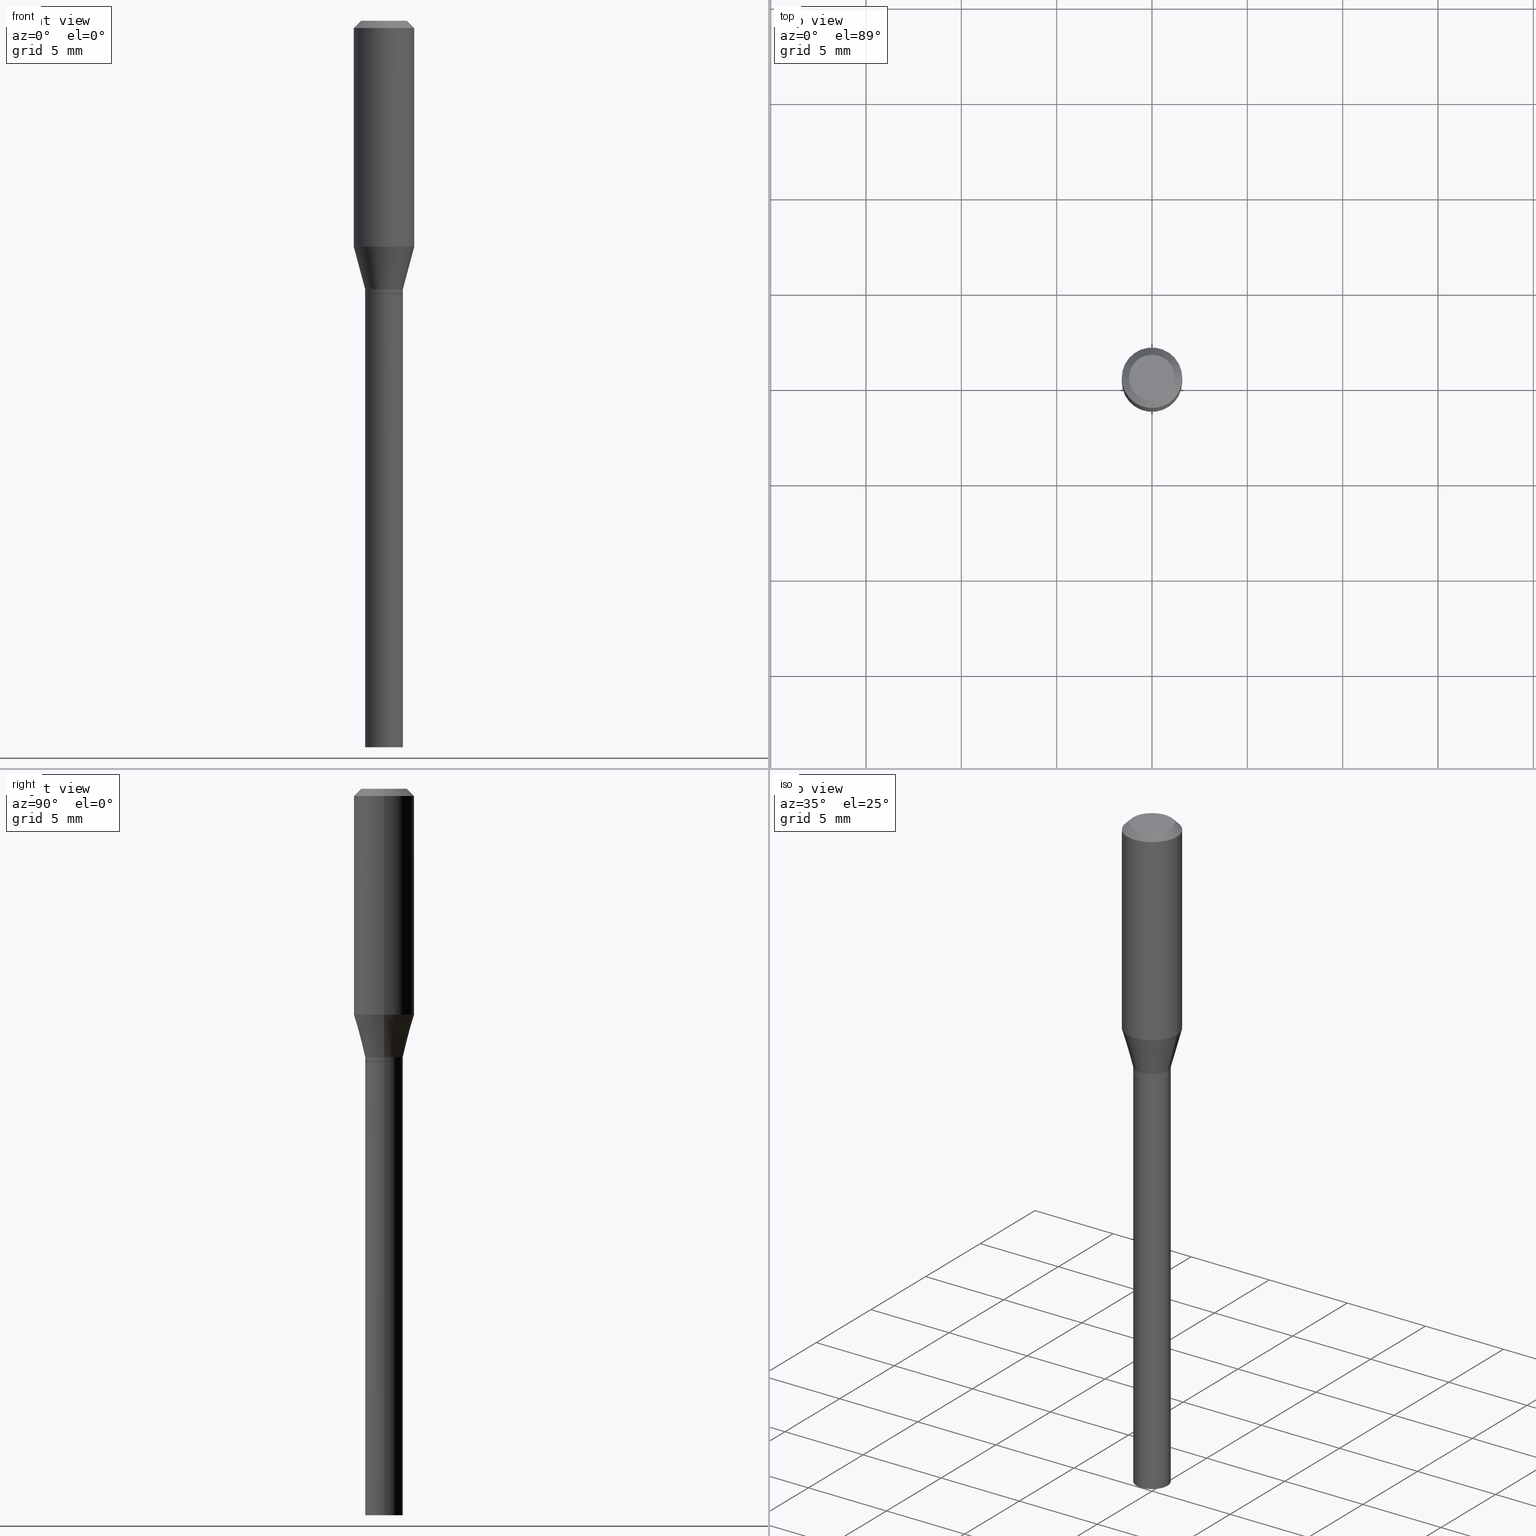
[diagram: canonical four-view strip — front | top / right | iso, engineering-drawing reading convention]
A machine part, canonical four-view strip (front | top / right | iso — engineering-drawing reading convention). The complete STEP part file that produces these views, byte-faithful:
ISO-10303-21;
HEADER;
FILE_DESCRIPTION (( 'STEP AP203' ),
    '1' );
FILE_NAME ('04255.STEP',
    '2024-03-14T17:32:29',
    ( '' ),
    ( '' ),
    'SwSTEP 2.0',
    'SolidWorks 2023',
    '' );
FILE_SCHEMA (( 'CONFIG_CONTROL_DESIGN' ));
ENDSEC;

DATA;
#1 = ORIENTED_EDGE ( 'NONE', *, *, #142, .T. ) ;
#2 = EDGE_CURVE ( 'NONE', #178, #13, #392, .T. ) ;
#3 = LINE ( 'NONE', #121, #437 ) ;
#4 = DIRECTION ( 'NONE',  ( 1.000000000000000000, -6.982962677686268288E-15, 0.000000000000000000 ) ) ;
#5 = EDGE_CURVE ( 'NONE', #143, #297, #371, .T. ) ;
#6 = ORIENTED_EDGE ( 'NONE', *, *, #462, .T. ) ;
#7 = FACE_OUTER_BOUND ( 'NONE', #243, .T. ) ;
#8 = CIRCLE ( 'NONE', #190, 0.03899999999999990974 ) ;
#9 = CLOSED_SHELL ( 'NONE', ( #228, #460, #357, #290, #238, #319, #234, #164, #186, #375, #93, #389 ) ) ;
#10 = ORIENTED_EDGE ( 'NONE', *, *, #30, .T. ) ;
#11 = APPROVAL_PERSON_ORGANIZATION ( #338, #229, #22 ) ;
#12 = DIRECTION ( 'NONE',  ( -2.438088387897960049E-29, 3.491481338843145188E-15, 1.000000000000000000 ) ) ;
#13 = VERTEX_POINT ( 'NONE', #56 ) ;
#14 = AXIS2_PLACEMENT_3D ( 'NONE', #94, #230, #119 ) ;
#15 = VECTOR ( 'NONE', #182, 39.37007874015748143 ) ;
#16 = DATE_AND_TIME ( #410, #450 ) ;
#17 = DIRECTION ( 'NONE',  ( -2.445468806185136877E-29, 3.491481338843145188E-15, 1.000000000000000000 ) ) ;
#18 = DIRECTION ( 'NONE',  ( 1.000000000000000000, -6.982962677686267499E-15, 4.852736867747366768E-29 ) ) ;
#19 = EDGE_CURVE ( 'NONE', #384, #394, #8, .T. ) ;
#20 = DIRECTION ( 'NONE',  ( 0.7071067811866621478, -2.468850131083457312E-15, 0.7071067811864328867 ) ) ;
#21 = DIRECTION ( 'NONE',  ( -2.445468806185136597E-29, 3.491481338843145583E-15, 1.000000000000000000 ) ) ;
#22 = APPROVAL_ROLE ( '' ) ;
#23 = CONICAL_SURFACE ( 'NONE', #435, 0.06250000000000000000, 0.7853981633974309595 ) ;
#24 = AXIS2_PLACEMENT_3D ( 'NONE', #108, #47, #187 ) ;
#25 = DIRECTION ( 'NONE',  ( -2.445468806185136597E-29, 3.491481338843145583E-15, 1.000000000000000000 ) ) ;
#26 = CARTESIAN_POINT ( 'NONE',  ( 0.000000000000000000, 0.000000000000000000, 0.000000000000000000 ) ) ;
#27 = CARTESIAN_POINT ( 'NONE',  ( -0.03899999999999990974, -1.657168994772664338E-15, -0.5540000000000000480 ) ) ;
#28 = EDGE_CURVE ( 'NONE', #13, #178, #449, .T. ) ;
#29 = DIRECTION ( 'NONE',  ( 1.000000000000000000, -6.982962677686265133E-15, 0.000000000000000000 ) ) ;
#30 = EDGE_CURVE ( 'NONE', #189, #13, #136, .T. ) ;
#31 = CYLINDRICAL_SURFACE ( 'NONE', #194, 0.03899999999999999994 ) ;
#32 = CALENDAR_DATE ( 2024, 14, 3 ) ;
#33 = DIRECTION ( 'NONE',  ( 1.000000000000000000, -6.982962677686267499E-15, 4.852736867747366768E-29 ) ) ;
#34 = ORIENTED_EDGE ( 'NONE', *, *, #260, .T. ) ;
#35 = CARTESIAN_POINT ( 'NONE',  ( 3.668203209277705088E-31, -5.237222008264718399E-17, -0.01499999999999999944 ) ) ;
#36 = AXIS2_PLACEMENT_3D ( 'NONE', #361, #334, #405 ) ;
#37 = APPROVAL_DATE_TIME ( #67, #282 ) ;
#38 = ORIENTED_EDGE ( 'NONE', *, *, #145, .F. ) ;
#39 = ORIENTED_EDGE ( 'NONE', *, *, #354, .T. ) ;
#40 = VECTOR ( 'NONE', #112, 39.37007874015748854 ) ;
#41 = ORIENTED_EDGE ( 'NONE', *, *, #255, .T. ) ;
#42 = EDGE_CURVE ( 'NONE', #213, #394, #446, .T. ) ;
#43 = CARTESIAN_POINT ( 'NONE',  ( 0.03899999999999990974, -2.206616206148866497E-15, -0.5540000000000000480 ) ) ;
#44 = EDGE_LOOP ( 'NONE', ( #154, #39, #183, #285 ) ) ;
#45 = LINE ( 'NONE', #43, #40 ) ;
#46 = ORIENTED_EDGE ( 'NONE', *, *, #151, .F. ) ;
#47 = DIRECTION ( 'NONE',  ( 2.445468806185136597E-29, -3.491481338843145583E-15, -1.000000000000000000 ) ) ;
#48 = CONICAL_SURFACE ( 'NONE', #215, 0.03849999999999999256, 0.7853981633976103716 ) ;
#49 = CC_DESIGN_APPROVAL ( #282, ( #465 ) ) ;
#50 = ORIENTED_EDGE ( 'NONE', *, *, #151, .T. ) ;
#51 = CC_DESIGN_PERSON_AND_ORGANIZATION_ASSIGNMENT ( #173, #198, ( #55 ) ) ;
#52 = CARTESIAN_POINT ( 'NONE',  ( 0.03849999999999999256, -2.238039538198455139E-15, -0.5639999999999999458 ) ) ;
#53 = VECTOR ( 'NONE', #382, 39.37007874015748143 ) ;
#54 = CC_DESIGN_PERSON_AND_ORGANIZATION_ASSIGNMENT ( #346, #236, ( #250 ) ) ;
#55 = PRODUCT ( '04255', '04255', '', ( #171 ) ) ;
#56 = CARTESIAN_POINT ( 'NONE',  ( 0.03899999999999999994, -2.241531019537298935E-15, -0.5640000000000000568 ) ) ;
#57 = CARTESIAN_POINT ( 'NONE',  ( -0.03849999999999999256, -1.692987294665784502E-15, -0.5639999999999999458 ) ) ;
#58 = DIRECTION ( 'NONE',  ( 1.000000000000000000, -6.982962677686266711E-15, 0.000000000000000000 ) ) ;
#59 = APPROVAL_DATE_TIME ( #444, #426 ) ;
#60 = APPROVAL_PERSON_ORGANIZATION ( #71, #282, #386 ) ;
#61 = CARTESIAN_POINT ( 'NONE',  ( 0.03849999999999999256, -2.238039538198455139E-15, -0.5639999999999999458 ) ) ;
#62 = PERSON_AND_ORGANIZATION_ROLE ( 'classification_officer' ) ;
#63 = DIRECTION ( 'NONE',  ( 1.000000000000000000, -6.982962677686266711E-15, 0.000000000000000000 ) ) ;
#64 = ORIENTED_EDGE ( 'NONE', *, *, #448, .T. ) ;
#65 = DIRECTION ( 'NONE',  ( 1.000000000000000000, -6.982962677686265922E-15, 4.876176775795935793E-29 ) ) ;
#66 = DIRECTION ( 'NONE',  ( -1.000000000000000000, 6.982962677686266711E-15, 0.000000000000000000 ) ) ;
#67 = DATE_AND_TIME ( #140, #383 ) ;
#68 = EDGE_CURVE ( 'NONE', #218, #189, #261, .T. ) ;
#69 = VECTOR ( 'NONE', #244, 39.37007874015748143 ) ;
#70 = AXIS2_PLACEMENT_3D ( 'NONE', #322, #464, #431 ) ;
#71 = PERSON_AND_ORGANIZATION ( #111, #211 ) ;
#72 = CC_DESIGN_DATE_AND_TIME_ASSIGNMENT ( #16, #161, ( #409 ) ) ;
#73 = ORIENTED_EDGE ( 'NONE', *, *, #74, .T. ) ;
#74 = EDGE_CURVE ( 'NONE', #466, #330, #245, .T. ) ;
#75 = ORIENTED_EDGE ( 'NONE', *, *, #212, .F. ) ;
#76 = CONICAL_SURFACE ( 'NONE', #24, 0.06250000000000000000, 0.7853981633974309595 ) ;
#77 = ORIENTED_EDGE ( 'NONE', *, *, #68, .F. ) ;
#78 = DIRECTION ( 'NONE',  ( 1.000000000000000000, -6.982962677686265922E-15, 4.876176775795935793E-29 ) ) ;
#79 = EDGE_LOOP ( 'NONE', ( #254, #401, #430, #274 ) ) ;
#80 = CARTESIAN_POINT ( 'NONE',  ( 0.03899999999999990974, -2.206616206148866497E-15, -0.5540000000000000480 ) ) ;
#81 = ORIENTED_EDGE ( 'NONE', *, *, #142, .F. ) ;
#82 = CARTESIAN_POINT ( 'NONE',  ( -0.03899999999999990974, -1.420573190755517475E-15, -0.5540000000000000480 ) ) ;
#83 = AXIS2_PLACEMENT_3D ( 'NONE', #149, #363, #4 ) ;
#84 = ORIENTED_EDGE ( 'NONE', *, *, #296, .F. ) ;
#85 = MANIFOLD_SOLID_BREP ( 'Body-Move/Copy2[1]', #209 ) ;
#86 = PERSON_AND_ORGANIZATION_ROLE ( 'creator' ) ;
#87 =( CONVERSION_BASED_UNIT ( 'INCH', #118 ) LENGTH_UNIT ( ) NAMED_UNIT ( #175 ) );
#88 = AXIS2_PLACEMENT_3D ( 'NONE', #184, #292, #78 ) ;
#89 = DIRECTION ( 'NONE',  ( 1.000000000000000000, -6.982962677686265133E-15, 0.000000000000000000 ) ) ;
#90 = DIRECTION ( 'NONE',  ( -2.445468806185136597E-29, 3.491481338843145583E-15, 1.000000000000000000 ) ) ;
#91 = DIRECTION ( 'NONE',  ( 1.000000000000000000, -6.982962677686270655E-15, 0.000000000000000000 ) ) ;
#92 = PERSON_AND_ORGANIZATION ( #111, #211 ) ;
#93 = ADVANCED_FACE ( 'NONE', ( #352 ), #48, .T. ) ;
#94 = CARTESIAN_POINT ( 'NONE',  ( 1.378021672285324658E-29, -1.967449734438113014E-15, -0.5635000000000001119 ) ) ;
#95 = COORDINATED_UNIVERSAL_TIME_OFFSET ( 5, 0, .BEHIND. ) ;
#96 = DIRECTION ( 'NONE',  ( -2.445468806185136597E-29, 3.491481338843145583E-15, 1.000000000000000000 ) ) ;
#97 = CC_DESIGN_APPROVAL ( #229, ( #409 ) ) ;
#98 = DIRECTION ( 'NONE',  ( 1.000000000000000000, -6.982962677686266711E-15, 0.000000000000000000 ) ) ;
#99 = CARTESIAN_POINT ( 'NONE',  ( -0.03899999999999999994, -3.326097074739686831E-15, -1.500000000000000222 ) ) ;
#100 = FACE_OUTER_BOUND ( 'NONE', #157, .T. ) ;
#101 = ADVANCED_FACE ( 'NONE', ( #200 ), #31, .T. ) ;
#102 = ORIENTED_EDGE ( 'NONE', *, *, #145, .T. ) ;
#103 = VECTOR ( 'NONE', #273, 39.37007874015748854 ) ;
#104 = EDGE_CURVE ( 'NONE', #297, #213, #210, .T. ) ;
#105 = EDGE_CURVE ( 'NONE', #189, #218, #407, .T. ) ;
#106 = ORIENTED_EDGE ( 'NONE', *, *, #135, .F. ) ;
#107 = ORIENTED_EDGE ( 'NONE', *, *, #68, .T. ) ;
#108 = CARTESIAN_POINT ( 'NONE',  ( 3.668203209277705088E-31, -5.237222008264718399E-17, -0.01499999999999999944 ) ) ;
#109 = AXIS2_PLACEMENT_3D ( 'NONE', #340, #127, #18 ) ;
#110 = EDGE_LOOP ( 'NONE', ( #294, #193, #368, #150 ) ) ;
#111 = PERSON ( 'UNSPECIFIED', 'UNSPECIFIED', 'UNSPECIFIED', ('UNSPECIFIED'), ('UNSPECIFIED'), ('UNSPECIFIED') ) ;
#112 = DIRECTION ( 'NONE',  ( 0.2588190451025211836, 1.565188264969622559E-15, 0.9659258262890679791 ) ) ;
#113 = EDGE_LOOP ( 'NONE', ( #46, #335 ) ) ;
#114 = PLANE ( 'NONE',  #345 ) ;
#115 = CARTESIAN_POINT ( 'NONE',  ( 1.379244406688417180E-29, -1.969195475107534123E-15, -0.5640000000000000568 ) ) ;
#116 = CIRCLE ( 'NONE', #370, 0.03900000000000005546 ) ;
#117 = DATE_AND_TIME ( #120, #191 ) ;
#118 = LENGTH_MEASURE_WITH_UNIT ( LENGTH_MEASURE( 0.02539999999999999897 ), #445 );
#119 = DIRECTION ( 'NONE',  ( 1.000000000000000000, -6.982962677686273810E-15, 0.000000000000000000 ) ) ;
#120 = CALENDAR_DATE ( 2024, 14, 3 ) ;
#121 = CARTESIAN_POINT ( 'NONE',  ( -0.03899999999999999994, 2.771116669464390721E-16, -1.918384685199413078E-30 ) ) ;
#122 = EDGE_CURVE ( 'NONE', #330, #328, #452, .T. ) ;
#123 = DIRECTION ( 'NONE',  ( 2.438088387897960049E-29, -3.491481338843145188E-15, -1.000000000000000000 ) ) ;
#124 = CARTESIAN_POINT ( 'NONE',  ( 1.379244406688416899E-29, -1.969195475107534123E-15, -0.5639999999999999458 ) ) ;
#125 = APPLICATION_PROTOCOL_DEFINITION ( 'international standard', 'config_control_design', 1994, #181 ) ;
#126 = FACE_OUTER_BOUND ( 'NONE', #246, .T. ) ;
#127 = DIRECTION ( 'NONE',  ( -2.445468806185136597E-29, 3.491481338843145583E-15, 1.000000000000000000 ) ) ;
#128 = PRODUCT_DEFINITION_SHAPE ( 'NONE', 'NONE',  #409 ) ;
#129 = DIRECTION ( 'NONE',  ( -2.445468806185136597E-29, 3.491481338843145583E-15, 1.000000000000000000 ) ) ;
#130 = PERSON_AND_ORGANIZATION_ROLE ( 'design_supplier' ) ;
#131 = DIRECTION ( 'NONE',  ( 1.000000000000000000, -6.982962677686266711E-15, 4.876176775795935793E-29 ) ) ;
#132 = CARTESIAN_POINT ( 'NONE',  ( 0.03899999999999997913, -2.723355444297642696E-16, 1.901708942560413880E-30 ) ) ;
#133 = AXIS2_PLACEMENT_3D ( 'NONE', #456, #129, #271 ) ;
#134 = VECTOR ( 'NONE', #289, 39.37007874015748143 ) ;
#135 = EDGE_CURVE ( 'NONE', #249, #213, #376, .T. ) ;
#136 = LINE ( 'NONE', #313, #358 ) ;
#137 = APPROVAL_STATUS ( 'not_yet_approved' ) ;
#138 = FACE_OUTER_BOUND ( 'NONE', #436, .T. ) ;
#139 = ORIENTED_EDGE ( 'NONE', *, *, #28, .T. ) ;
#140 = CALENDAR_DATE ( 2024, 14, 3 ) ;
#141 = ORIENTED_EDGE ( 'NONE', *, *, #42, .F. ) ;
#142 = EDGE_CURVE ( 'NONE', #355, #328, #202, .T. ) ;
#143 = VERTEX_POINT ( 'NONE', #61 ) ;
#144 = AXIS2_PLACEMENT_3D ( 'NONE', #377, #237, #347 ) ;
#145 = EDGE_CURVE ( 'NONE', #297, #384, #278, .T. ) ;
#146 = CARTESIAN_POINT ( 'NONE',  ( -0.06250000000000000000, 4.440892098500626162E-16, -3.074334431409316114E-30 ) ) ;
#147 = ORIENTED_EDGE ( 'NONE', *, *, #42, .T. ) ;
#148 = ORIENTED_EDGE ( 'NONE', *, *, #122, .F. ) ;
#149 = CARTESIAN_POINT ( 'NONE',  ( 1.354789718626565634E-29, -1.934280661719102868E-15, -0.5540000000000000480 ) ) ;
#150 = ORIENTED_EDGE ( 'NONE', *, *, #270, .F. ) ;
#151 = EDGE_CURVE ( 'NONE', #143, #249, #284, .T. ) ;
#152 = CYLINDRICAL_SURFACE ( 'NONE', #36, 0.03899999999999997913 ) ;
#153 = CIRCLE ( 'NONE', #109, 0.04749999999999999362 ) ;
#154 = ORIENTED_EDGE ( 'NONE', *, *, #255, .F. ) ;
#155 = EDGE_CURVE ( 'NONE', #330, #466, #223, .T. ) ;
#156 = DIRECTION ( 'NONE',  ( -2.445468806185136597E-29, 3.491481338843145583E-15, 1.000000000000000000 ) ) ;
#157 = EDGE_LOOP ( 'NONE', ( #64, #34 ) ) ;
#158 = PRODUCT_RELATED_PRODUCT_CATEGORY ( 'detail', '', ( #55 ) ) ;
#159 = CARTESIAN_POINT ( 'NONE',  ( 0.000000000000000000, 0.000000000000000000, 0.000000000000000000 ) ) ;
#160 = CONICAL_SURFACE ( 'NONE', #144, 0.03899999999999990974, 0.2617993877991499074 ) ;
#161 = DATE_TIME_ROLE ( 'creation_date' ) ;
#162 = DIRECTION ( 'NONE',  ( -2.445468806185136597E-29, 3.491481338843145583E-15, 1.000000000000000000 ) ) ;
#163 = CARTESIAN_POINT ( 'NONE',  ( 1.379244406688416899E-29, -1.969195475107534123E-15, -0.5639999999999999458 ) ) ;
#164 = ADVANCED_FACE ( 'NONE', ( #239 ), #23, .T. ) ;
#165 = DIRECTION ( 'NONE',  ( -1.000000000000000000, 6.982962677686265922E-15, -4.876176775795935793E-29 ) ) ;
#166 = DIRECTION ( 'NONE',  ( -2.445468806185136597E-29, 3.491481338843145583E-15, 1.000000000000000000 ) ) ;
#167 = DIRECTION ( 'NONE',  ( 1.000000000000000000, 0.000000000000000000, 0.000000000000000000 ) ) ;
#168 = AXIS2_PLACEMENT_3D ( 'NONE', #422, #204, #275 ) ;
#169 = CONICAL_SURFACE ( 'NONE', #337, 0.03899999999999990974, 0.2617993877991499074 ) ;
#170 = DIRECTION ( 'NONE',  ( 1.000000000000000000, -6.982962677686258033E-15, 0.000000000000000000 ) ) ;
#171 = MECHANICAL_CONTEXT ( 'NONE', #293, 'mechanical' ) ;
#172 = DIRECTION ( 'NONE',  ( 1.000000000000000000, -6.982962677686258033E-15, 0.000000000000000000 ) ) ;
#173 = PERSON_AND_ORGANIZATION ( #111, #211 ) ;
#174 = LINE ( 'NONE', #315, #134 ) ;
#175 = DIMENSIONAL_EXPONENTS ( 1.000000000000000000, 0.000000000000000000, 0.000000000000000000, 0.000000000000000000, 0.000000000000000000, 0.000000000000000000, 0.000000000000000000 ) ;
#176 = DIRECTION ( 'NONE',  ( -2.445468806185136877E-29, 3.491481338843145188E-15, 1.000000000000000000 ) ) ;
#177 = CC_DESIGN_SECURITY_CLASSIFICATION ( #465, ( #250 ) ) ;
#178 = VERTEX_POINT ( 'NONE', #423 ) ;
#179 = FACE_OUTER_BOUND ( 'NONE', #325, .T. ) ;
#180 = ORIENTED_EDGE ( 'NONE', *, *, #155, .T. ) ;
#181 = APPLICATION_CONTEXT ( 'configuration controlled 3d designs of mechanical parts and assemblies' ) ;
#182 = DIRECTION ( 'NONE',  ( -2.445468806185136877E-29, 3.491481338843145188E-15, 1.000000000000000000 ) ) ;
#183 = ORIENTED_EDGE ( 'NONE', *, *, #320, .T. ) ;
#184 = CARTESIAN_POINT ( 'NONE',  ( 1.379244406688417180E-29, -1.969195475107534123E-15, -0.5640000000000000568 ) ) ;
#185 = EDGE_LOOP ( 'NONE', ( #332, #147, #395, #38 ) ) ;
#186 = ADVANCED_FACE ( 'NONE', ( #100 ), #390, .F. ) ;
#187 = DIRECTION ( 'NONE',  ( -1.000000000000000000, 6.982962677686266711E-15, 0.000000000000000000 ) ) ;
#188 = ADVANCED_FACE ( 'NONE', ( #179 ), #226, .T. ) ;
#189 = VERTEX_POINT ( 'NONE', #207 ) ;
#190 = AXIS2_PLACEMENT_3D ( 'NONE', #416, #21, #413 ) ;
#191 = LOCAL_TIME ( 13, 32, 29.00000000000000000, #417 ) ;
#192 = FACE_OUTER_BOUND ( 'NONE', #388, .T. ) ;
#193 = ORIENTED_EDGE ( 'NONE', *, *, #301, .T. ) ;
#194 = AXIS2_PLACEMENT_3D ( 'NONE', #344, #25, #242 ) ;
#195 =( NAMED_UNIT ( * ) SI_UNIT ( $, .STERADIAN. ) SOLID_ANGLE_UNIT ( ) );
#196 = CARTESIAN_POINT ( 'NONE',  ( 3.316907271900976096E-16, 0.04749999999999999362, 9.606345999275830148E-17 ) ) ;
#197 = DIRECTION ( 'NONE',  ( -2.445468806185136597E-29, 3.491481338843145583E-15, 1.000000000000000000 ) ) ;
#198 = PERSON_AND_ORGANIZATION_ROLE ( 'design_owner' ) ;
#199 = DIRECTION ( 'NONE',  ( 1.000000000000000000, -6.982962677686265133E-15, 0.000000000000000000 ) ) ;
#200 = FACE_OUTER_BOUND ( 'NONE', #79, .T. ) ;
#201 = APPROVAL_STATUS ( 'not_yet_approved' ) ;
#202 = CIRCLE ( 'NONE', #133, 0.06250000000000000000 ) ;
#203 = AXIS2_PLACEMENT_3D ( 'NONE', #26, #267, #167 ) ;
#204 = DIRECTION ( 'NONE',  ( -2.445468806185136597E-29, 3.491481338843145583E-15, 1.000000000000000000 ) ) ;
#205 = CARTESIAN_POINT ( 'NONE',  ( -1.280979716297259255E-44, 1.828899540070384152E-30, 5.238176471756153958E-16 ) ) ;
#206 = CC_DESIGN_DATE_AND_TIME_ASSIGNMENT ( #443, #283, ( #465 ) ) ;
#207 = CARTESIAN_POINT ( 'NONE',  ( 0.03899999999999999994, -5.509557552694482989E-15, -1.500000000000000222 ) ) ;
#208 = CARTESIAN_POINT ( 'NONE',  ( 1.140314293550883428E-29, -1.628066596588433426E-15, -0.4662968060221312494 ) ) ;
#209 = CLOSED_SHELL ( 'NONE', ( #101, #433, #188, #447 ) ) ;
#210 = CIRCLE ( 'NONE', #14, 0.03900000000000005546 ) ;
#211 = ORGANIZATION ( 'UNSPECIFIED', 'UNSPECIFIED', '' ) ;
#212 = EDGE_CURVE ( 'NONE', #218, #178, #3, .T. ) ;
#213 = VERTEX_POINT ( 'NONE', #264 ) ;
#214 = ORIENTED_EDGE ( 'NONE', *, *, #296, .T. ) ;
#215 = AXIS2_PLACEMENT_3D ( 'NONE', #124, #266, #89 ) ;
#216 = AXIS2_PLACEMENT_3D ( 'NONE', #303, #339, #231 ) ;
#217 = DIRECTION ( 'NONE',  ( 1.000000000000000000, -6.982962677686268288E-15, 0.000000000000000000 ) ) ;
#218 = VERTEX_POINT ( 'NONE', #99 ) ;
#219 = CARTESIAN_POINT ( 'NONE',  ( 0.04749999999999999362, -4.035134999187569255E-16, 5.238176471756179596E-16 ) ) ;
#220 = ORIENTED_EDGE ( 'NONE', *, *, #301, .F. ) ;
#221 = PLANE ( 'NONE',  #88 ) ;
#222 = ORIENTED_EDGE ( 'NONE', *, *, #448, .F. ) ;
#223 = CIRCLE ( 'NONE', #397, 0.06250000000000000000 ) ;
#224 = DIRECTION ( 'NONE',  ( 1.000000000000000000, -6.982962677686270655E-15, 0.000000000000000000 ) ) ;
#225 = CC_DESIGN_PERSON_AND_ORGANIZATION_ASSIGNMENT ( #92, #86, ( #409 ) ) ;
#226 = CYLINDRICAL_SURFACE ( 'NONE', #277, 0.03899999999999999994 ) ;
#227 = AXIS2_PLACEMENT_3D ( 'NONE', #205, #350, #33 ) ;
#228 = ADVANCED_FACE ( 'NONE', ( #381 ), #414, .T. ) ;
#229 = APPROVAL ( #201, 'UNSPECIFIED' ) ;
#230 = DIRECTION ( 'NONE',  ( -2.445468806185136597E-29, 3.491481338843145583E-15, 1.000000000000000000 ) ) ;
#231 = DIRECTION ( 'NONE',  ( 1.000000000000000000, -6.982962677686266711E-15, 4.876176775795935793E-29 ) ) ;
#232 = DIRECTION ( 'NONE',  ( -1.000000000000000000, 6.982962677686265922E-15, -4.876176775795935793E-29 ) ) ;
#233 = CARTESIAN_POINT ( 'NONE',  ( -0.03899999999999997913, 2.771116669464389242E-16, -1.918384685199412027E-30 ) ) ;
#234 = ADVANCED_FACE ( 'NONE', ( #387 ), #268, .T. ) ;
#235 = CARTESIAN_POINT ( 'NONE',  ( 3.668203209277704895E-29, -5.237222008264718177E-15, -1.500000000000000222 ) ) ;
#236 = PERSON_AND_ORGANIZATION_ROLE ( 'creator' ) ;
#237 = DIRECTION ( 'NONE',  ( -2.445468806185136597E-29, 3.491481338843145583E-15, 1.000000000000000000 ) ) ;
#238 = ADVANCED_FACE ( 'NONE', ( #126 ), #160, .T. ) ;
#239 = FACE_OUTER_BOUND ( 'NONE', #291, .T. ) ;
#240 = CARTESIAN_POINT ( 'NONE',  ( 0.000000000000000000, 0.000000000000000000, 0.000000000000000000 ) ) ;
#241 = EDGE_LOOP ( 'NONE', ( #84, #73, #406, #81 ) ) ;
#242 = DIRECTION ( 'NONE',  ( 1.000000000000000000, -6.982962677686265922E-15, 4.876176775795935793E-29 ) ) ;
#243 = EDGE_LOOP ( 'NONE', ( #141, #252, #102, #439 ) ) ;
#244 = DIRECTION ( 'NONE',  ( 0.7071067811865352493, -7.319954787623213447E-15, -0.7071067811865597852 ) ) ;
#245 = CIRCLE ( 'NONE', #324, 0.06250000000000000000 ) ;
#246 = EDGE_LOOP ( 'NONE', ( #441, #41, #359, #391 ) ) ;
#247 = CIRCLE ( 'NONE', #265, 0.06250000000000000000 ) ;
#248 = ORIENTED_EDGE ( 'NONE', *, *, #400, .F. ) ;
#249 = VERTEX_POINT ( 'NONE', #57 ) ;
#250 = PRODUCT_DEFINITION_FORMATION_WITH_SPECIFIED_SOURCE ( 'ANY', '', #55, .NOT_KNOWN. ) ;
#251 = CARTESIAN_POINT ( 'NONE',  ( 0.06250000000000000000, -4.888073874380388472E-16, -0.01499999999999999944 ) ) ;
#252 = ORIENTED_EDGE ( 'NONE', *, *, #400, .T. ) ;
#253 = CARTESIAN_POINT ( 'NONE',  ( -0.06250000000000000000, -3.961301984854776856E-16, -0.01499999999999999944 ) ) ;
#254 = ORIENTED_EDGE ( 'NONE', *, *, #105, .T. ) ;
#255 = EDGE_CURVE ( 'NONE', #394, #466, #418, .T. ) ;
#256 = CARTESIAN_POINT ( 'NONE',  ( 2.723355444297781239E-16, 0.03899999999999802236, -0.5640000000000001679 ) ) ;
#257 = DIRECTION ( 'NONE',  ( -2.445468806185136597E-29, 3.491481338843145583E-15, 1.000000000000000000 ) ) ;
#258 = APPROVAL_PERSON_ORGANIZATION ( #374, #426, #302 ) ;
#259 = EDGE_CURVE ( 'NONE', #328, #355, #247, .T. ) ;
#260 = EDGE_CURVE ( 'NONE', #425, #403, #263, .T. ) ;
#261 = CIRCLE ( 'NONE', #455, 0.03899999999999999994 ) ;
#262 = DIRECTION ( 'NONE',  ( -2.445468806185136597E-29, 3.491481338843145583E-15, 1.000000000000000000 ) ) ;
#263 = CIRCLE ( 'NONE', #227, 0.04749999999999999362 ) ;
#264 = CARTESIAN_POINT ( 'NONE',  ( -0.03900000000000005546, -1.690338067491673498E-15, -0.5635000000000001119 ) ) ;
#265 = AXIS2_PLACEMENT_3D ( 'NONE', #421, #96, #63 ) ;
#266 = DIRECTION ( 'NONE',  ( -2.445468806185136597E-29, 3.491481338843145583E-15, 1.000000000000000000 ) ) ;
#267 = DIRECTION ( 'NONE',  ( 0.000000000000000000, 0.000000000000000000, 1.000000000000000000 ) ) ;
#268 = CYLINDRICAL_SURFACE ( 'NONE', #216, 0.06250000000000000000 ) ;
#269 = DIRECTION ( 'NONE',  ( -2.445468806185136597E-29, 3.491481338843145583E-15, 1.000000000000000000 ) ) ;
#270 = EDGE_CURVE ( 'NONE', #403, #355, #174, .T. ) ;
#271 = DIRECTION ( 'NONE',  ( 1.000000000000000000, -6.982962677686266711E-15, 0.000000000000000000 ) ) ;
#272 = SECURITY_CLASSIFICATION_LEVEL ( 'unclassified' ) ;
#273 = DIRECTION ( 'NONE',  ( -0.2588190451025211836, 5.211531920934547886E-15, 0.9659258262890679791 ) ) ;
#274 = ORIENTED_EDGE ( 'NONE', *, *, #30, .F. ) ;
#275 = DIRECTION ( 'NONE',  ( 1.000000000000000000, -6.982962677686265133E-15, 0.000000000000000000 ) ) ;
#276 = AXIS2_PLACEMENT_3D ( 'NONE', #235, #262, #170 ) ;
#277 = AXIS2_PLACEMENT_3D ( 'NONE', #159, #366, #65 ) ;
#278 = LINE ( 'NONE', #132, #308 ) ;
#279 = CYLINDRICAL_SURFACE ( 'NONE', #70, 0.06250000000000000000 ) ;
#280 = LINE ( 'NONE', #458, #69 ) ;
#281 = EDGE_LOOP ( 'NONE', ( #139, #288 ) ) ;
#282 = APPROVAL ( #137, 'UNSPECIFIED' ) ;
#283 = DATE_TIME_ROLE ( 'classification_date' ) ;
#284 = CIRCLE ( 'NONE', #168, 0.03849999999999999256 ) ;
#285 = ORIENTED_EDGE ( 'NONE', *, *, #74, .F. ) ;
#286 = AXIS2_PLACEMENT_3D ( 'NONE', #163, #90, #199 ) ;
#287 = COORDINATED_UNIVERSAL_TIME_OFFSET ( 5, 0, .BEHIND. ) ;
#288 = ORIENTED_EDGE ( 'NONE', *, *, #2, .T. ) ;
#289 = DIRECTION ( 'NONE',  ( -0.7071067811865352493, 2.468850131082128476E-15, -0.7071067811865597852 ) ) ;
#290 = ADVANCED_FACE ( 'NONE', ( #138 ), #279, .T. ) ;
#291 = EDGE_LOOP ( 'NONE', ( #220, #222, #356, #1 ) ) ;
#292 = DIRECTION ( 'NONE',  ( -2.438088387897960049E-29, 3.491481338843145188E-15, 1.000000000000000000 ) ) ;
#293 = APPLICATION_CONTEXT ( 'configuration controlled 3d designs of mechanical parts and assemblies' ) ;
#294 = ORIENTED_EDGE ( 'NONE', *, *, #260, .F. ) ;
#295 = PLANE ( 'NONE',  #333 ) ;
#296 = EDGE_CURVE ( 'NONE', #466, #355, #353, .T. ) ;
#297 = VERTEX_POINT ( 'NONE', #429 ) ;
#298 = DIRECTION ( 'NONE',  ( 1.000000000000000000, -6.982962677686265922E-15, 4.876176775795935793E-29 ) ) ;
#299 = ORIENTED_EDGE ( 'NONE', *, *, #104, .F. ) ;
#300 = DESIGN_CONTEXT ( 'detailed design', #181, 'design' ) ;
#301 = EDGE_CURVE ( 'NONE', #425, #328, #280, .T. ) ;
#302 = APPROVAL_ROLE ( '' ) ;
#303 = CARTESIAN_POINT ( 'NONE',  ( 0.000000000000000000, 0.000000000000000000, 0.000000000000000000 ) ) ;
#304 = CC_DESIGN_PERSON_AND_ORGANIZATION_ASSIGNMENT ( #453, #130, ( #250 ) ) ;
#305 = CARTESIAN_POINT ( 'NONE',  ( -0.06250000000000000000, -1.183977386738370809E-15, -0.4662968060221312494 ) ) ;
#306 = CARTESIAN_POINT ( 'NONE',  ( 1.140314293550883428E-29, -1.628066596588433426E-15, -0.4662968060221312494 ) ) ;
#307 = APPLICATION_PROTOCOL_DEFINITION ( 'international standard', 'config_control_design', 1994, #293 ) ;
#308 = VECTOR ( 'NONE', #176, 39.37007874015748143 ) ;
#309 = CARTESIAN_POINT ( 'NONE',  ( 1.379244406688417180E-29, -1.969195475107534123E-15, -0.5640000000000000568 ) ) ;
#310 = CARTESIAN_POINT ( 'NONE',  ( 1.379244406688416899E-29, -1.969195475107534123E-15, -0.5639999999999999458 ) ) ;
#311 = CARTESIAN_POINT ( 'NONE',  ( 3.668203209277704895E-29, -5.237222008264718177E-15, -1.500000000000000222 ) ) ;
#312 = APPROVAL_STATUS ( 'not_yet_approved' ) ;
#313 = CARTESIAN_POINT ( 'NONE',  ( 0.03899999999999999994, -2.723355444297643682E-16, 1.901708942560414931E-30 ) ) ;
#314 = SHAPE_DEFINITION_REPRESENTATION ( #128, #323 ) ;
#315 = CARTESIAN_POINT ( 'NONE',  ( -0.06250000000000000000, 3.840629472727444916E-16, -0.01499999999999999944 ) ) ;
#316 = DIRECTION ( 'NONE',  ( -2.445468806185136877E-29, 3.491481338843145188E-15, 1.000000000000000000 ) ) ;
#317 = VECTOR ( 'NONE', #419, 39.37007874015748143 ) ;
#318 = CC_DESIGN_APPROVAL ( #426, ( #250 ) ) ;
#319 = ADVANCED_FACE ( 'NONE', ( #463 ), #169, .T. ) ;
#320 = EDGE_CURVE ( 'NONE', #384, #330, #45, .T. ) ;
#321 = EDGE_LOOP ( 'NONE', ( #50, #362, #299, #432 ) ) ;
#322 = CARTESIAN_POINT ( 'NONE',  ( 0.000000000000000000, 0.000000000000000000, 0.000000000000000000 ) ) ;
#323 = ADVANCED_BREP_SHAPE_REPRESENTATION ( '04255', ( #85, #404, #203 ), #393 ) ;
#324 = AXIS2_PLACEMENT_3D ( 'NONE', #208, #379, #58 ) ;
#325 = EDGE_LOOP ( 'NONE', ( #75, #107, #10, #461 ) ) ;
#326 = LOCAL_TIME ( 13, 32, 29.00000000000000000, #95 ) ;
#327 = CARTESIAN_POINT ( 'NONE',  ( 1.354789718626565634E-29, -1.934280661719102868E-15, -0.5540000000000000480 ) ) ;
#328 = VERTEX_POINT ( 'NONE', #251 ) ;
#329 = DIRECTION ( 'NONE',  ( -2.445468806185136597E-29, 3.491481338843145583E-15, 1.000000000000000000 ) ) ;
#330 = VERTEX_POINT ( 'NONE', #399 ) ;
#331 = FACE_OUTER_BOUND ( 'NONE', #113, .T. ) ;
#332 = ORIENTED_EDGE ( 'NONE', *, *, #104, .T. ) ;
#333 = AXIS2_PLACEMENT_3D ( 'NONE', #438, #12, #298 ) ;
#334 = DIRECTION ( 'NONE',  ( -2.445468806185136597E-29, 3.491481338843145583E-15, 1.000000000000000000 ) ) ;
#335 = ORIENTED_EDGE ( 'NONE', *, *, #462, .F. ) ;
#336 = AXIS2_PLACEMENT_3D ( 'NONE', #309, #348, #91 ) ;
#337 = AXIS2_PLACEMENT_3D ( 'NONE', #327, #329, #217 ) ;
#338 = PERSON_AND_ORGANIZATION ( #111, #211 ) ;
#339 = DIRECTION ( 'NONE',  ( -2.445468806185136597E-29, 3.491481338843145583E-15, 1.000000000000000000 ) ) ;
#340 = CARTESIAN_POINT ( 'NONE',  ( -1.280979716297259255E-44, 1.828899540070384152E-30, 5.238176471756153958E-16 ) ) ;
#341 = DIRECTION ( 'NONE',  ( 2.438088387897960049E-29, -3.491481338843145188E-15, -1.000000000000000000 ) ) ;
#342 = CALENDAR_DATE ( 2024, 14, 3 ) ;
#343 = CARTESIAN_POINT ( 'NONE',  ( 0.06250000000000000000, -4.364351673553916694E-16, 3.047610484872459871E-30 ) ) ;
#344 = CARTESIAN_POINT ( 'NONE',  ( 0.000000000000000000, 0.000000000000000000, 0.000000000000000000 ) ) ;
#345 = AXIS2_PLACEMENT_3D ( 'NONE', #256, #123, #232 ) ;
#346 = PERSON_AND_ORGANIZATION ( #111, #211 ) ;
#347 = DIRECTION ( 'NONE',  ( 1.000000000000000000, -6.982962677686268288E-15, 0.000000000000000000 ) ) ;
#348 = DIRECTION ( 'NONE',  ( -2.445468806185136597E-29, 3.491481338843145583E-15, 1.000000000000000000 ) ) ;
#349 = COORDINATED_UNIVERSAL_TIME_OFFSET ( 5, 0, .BEHIND. ) ;
#350 = DIRECTION ( 'NONE',  ( -2.445468806185136597E-29, 3.491481338843145583E-15, 1.000000000000000000 ) ) ;
#351 = EDGE_LOOP ( 'NONE', ( #106, #6, #398, #248 ) ) ;
#352 = FACE_OUTER_BOUND ( 'NONE', #351, .T. ) ;
#353 = LINE ( 'NONE', #146, #15 ) ;
#354 = EDGE_CURVE ( 'NONE', #394, #384, #428, .T. ) ;
#355 = VERTEX_POINT ( 'NONE', #253 ) ;
#356 = ORIENTED_EDGE ( 'NONE', *, *, #270, .T. ) ;
#357 = ADVANCED_FACE ( 'NONE', ( #402 ), #76, .T. ) ;
#358 = VECTOR ( 'NONE', #316, 39.37007874015748143 ) ;
#359 = ORIENTED_EDGE ( 'NONE', *, *, #155, .F. ) ;
#360 = CONICAL_SURFACE ( 'NONE', #286, 0.03849999999999999256, 0.7853981633976103716 ) ;
#361 = CARTESIAN_POINT ( 'NONE',  ( 0.000000000000000000, 0.000000000000000000, 0.000000000000000000 ) ) ;
#362 = ORIENTED_EDGE ( 'NONE', *, *, #135, .T. ) ;
#363 = DIRECTION ( 'NONE',  ( -2.445468806185136597E-29, 3.491481338843145583E-15, 1.000000000000000000 ) ) ;
#364 = ORIENTED_EDGE ( 'NONE', *, *, #259, .F. ) ;
#365 = CARTESIAN_POINT ( 'NONE',  ( 1.378021672285324658E-29, -1.967449734438113014E-15, -0.5635000000000001119 ) ) ;
#366 = DIRECTION ( 'NONE',  ( -2.445468806185136597E-29, 3.491481338843145583E-15, 1.000000000000000000 ) ) ;
#367 = CC_DESIGN_PERSON_AND_ORGANIZATION_ASSIGNMENT ( #420, #62, ( #465 ) ) ;
#368 = ORIENTED_EDGE ( 'NONE', *, *, #259, .T. ) ;
#369 = VECTOR ( 'NONE', #20, 39.37007874015748143 ) ;
#370 = AXIS2_PLACEMENT_3D ( 'NONE', #365, #156, #434 ) ;
#371 = LINE ( 'NONE', #52, #369 ) ;
#372 = AXIS2_PLACEMENT_3D ( 'NONE', #196, #341, #165 ) ;
#373 = LOCAL_TIME ( 13, 32, 29.00000000000000000, #349 ) ;
#374 = PERSON_AND_ORGANIZATION ( #111, #211 ) ;
#375 = ADVANCED_FACE ( 'NONE', ( #331 ), #221, .F. ) ;
#376 = LINE ( 'NONE', #454, #317 ) ;
#377 = CARTESIAN_POINT ( 'NONE',  ( 1.354789718626565634E-29, -1.934280661719102868E-15, -0.5540000000000000480 ) ) ;
#378 = FACE_OUTER_BOUND ( 'NONE', #321, .T. ) ;
#379 = DIRECTION ( 'NONE',  ( -2.445468806185136597E-29, 3.491481338843145583E-15, 1.000000000000000000 ) ) ;
#380 = COORDINATED_UNIVERSAL_TIME_OFFSET ( 5, 0, .BEHIND. ) ;
#381 = FACE_OUTER_BOUND ( 'NONE', #185, .T. ) ;
#382 = DIRECTION ( 'NONE',  ( -2.445468806185136877E-29, 3.491481338843145188E-15, 1.000000000000000000 ) ) ;
#383 = LOCAL_TIME ( 13, 32, 29.00000000000000000, #287 ) ;
#384 = VERTEX_POINT ( 'NONE', #80 ) ;
#385 = DIRECTION ( 'NONE',  ( 2.445468806185136597E-29, -3.491481338843145583E-15, -1.000000000000000000 ) ) ;
#386 = APPROVAL_ROLE ( '' ) ;
#387 = FACE_OUTER_BOUND ( 'NONE', #241, .T. ) ;
#388 = EDGE_LOOP ( 'NONE', ( #459, #77 ) ) ;
#389 = ADVANCED_FACE ( 'NONE', ( #7 ), #152, .T. ) ;
#390 = PLANE ( 'NONE',  #372 ) ;
#391 = ORIENTED_EDGE ( 'NONE', *, *, #320, .F. ) ;
#392 = CIRCLE ( 'NONE', #412, 0.03899999999999999994 ) ;
#393 =( GEOMETRIC_REPRESENTATION_CONTEXT ( 3 ) GLOBAL_UNCERTAINTY_ASSIGNED_CONTEXT ( ( #415 ) ) GLOBAL_UNIT_ASSIGNED_CONTEXT ( ( #87, #424, #195 ) ) REPRESENTATION_CONTEXT ( 'NONE', 'WORKASPACE' ) );
#394 = VERTEX_POINT ( 'NONE', #82 ) ;
#395 = ORIENTED_EDGE ( 'NONE', *, *, #19, .F. ) ;
#396 = CARTESIAN_POINT ( 'NONE',  ( -0.04749999999999999362, 3.578768372314219874E-16, 5.238176471756130292E-16 ) ) ;
#397 = AXIS2_PLACEMENT_3D ( 'NONE', #306, #166, #98 ) ;
#398 = ORIENTED_EDGE ( 'NONE', *, *, #5, .T. ) ;
#399 = CARTESIAN_POINT ( 'NONE',  ( 0.06250000000000000000, -2.064501763943824898E-15, -0.4662968060221312494 ) ) ;
#400 = EDGE_CURVE ( 'NONE', #213, #297, #116, .T. ) ;
#401 = ORIENTED_EDGE ( 'NONE', *, *, #212, .T. ) ;
#402 = FACE_OUTER_BOUND ( 'NONE', #110, .T. ) ;
#403 = VERTEX_POINT ( 'NONE', #396 ) ;
#404 = MANIFOLD_SOLID_BREP ( 'Body-Move/Copy2[2]', #9 ) ;
#405 = DIRECTION ( 'NONE',  ( 1.000000000000000000, -6.982962677686266711E-15, 4.876176775795935793E-29 ) ) ;
#406 = ORIENTED_EDGE ( 'NONE', *, *, #122, .T. ) ;
#407 = CIRCLE ( 'NONE', #276, 0.03899999999999999994 ) ;
#408 = AXIS2_PLACEMENT_3D ( 'NONE', #310, #269, #29 ) ;
#409 = PRODUCT_DEFINITION ( 'UNKNOWN', '', #250, #300 ) ;
#410 = CALENDAR_DATE ( 2024, 14, 3 ) ;
#411 = APPROVAL_DATE_TIME ( #117, #229 ) ;
#412 = AXIS2_PLACEMENT_3D ( 'NONE', #115, #257, #224 ) ;
#413 = DIRECTION ( 'NONE',  ( 1.000000000000000000, -6.982962677686268288E-15, 0.000000000000000000 ) ) ;
#414 = CYLINDRICAL_SURFACE ( 'NONE', #442, 0.03899999999999997913 ) ;
#415 = UNCERTAINTY_MEASURE_WITH_UNIT (LENGTH_MEASURE( 1.000000000000000082E-05 ), #87, 'distance_accuracy_value', 'NONE');
#416 = CARTESIAN_POINT ( 'NONE',  ( 1.354789718626565634E-29, -1.934280661719102868E-15, -0.5540000000000000480 ) ) ;
#417 = COORDINATED_UNIVERSAL_TIME_OFFSET ( 5, 0, .BEHIND. ) ;
#418 = LINE ( 'NONE', #27, #103 ) ;
#419 = DIRECTION ( 'NONE',  ( -0.7071067811866621478, 7.493145998870769101E-15, 0.7071067811864328867 ) ) ;
#420 = PERSON_AND_ORGANIZATION ( #111, #211 ) ;
#421 = CARTESIAN_POINT ( 'NONE',  ( 3.668203209277705088E-31, -5.237222008264718399E-17, -0.01499999999999999944 ) ) ;
#422 = CARTESIAN_POINT ( 'NONE',  ( 1.379244406688416899E-29, -1.969195475107534123E-15, -0.5639999999999999458 ) ) ;
#423 = CARTESIAN_POINT ( 'NONE',  ( -0.03899999999999999994, -3.326097074739686831E-15, -0.5640000000000000568 ) ) ;
#424 =( NAMED_UNIT ( * ) PLANE_ANGLE_UNIT ( ) SI_UNIT ( $, .RADIAN. ) );
#425 = VERTEX_POINT ( 'NONE', #219 ) ;
#426 = APPROVAL ( #312, 'UNSPECIFIED' ) ;
#427 = VECTOR ( 'NONE', #451, 39.37007874015748143 ) ;
#428 = CIRCLE ( 'NONE', #83, 0.03899999999999990974 ) ;
#429 = CARTESIAN_POINT ( 'NONE',  ( 0.03900000000000005546, -2.239785278867877431E-15, -0.5635000000000001119 ) ) ;
#430 = ORIENTED_EDGE ( 'NONE', *, *, #28, .F. ) ;
#431 = DIRECTION ( 'NONE',  ( 1.000000000000000000, -6.982962677686266711E-15, 4.876176775795935793E-29 ) ) ;
#432 = ORIENTED_EDGE ( 'NONE', *, *, #5, .F. ) ;
#433 = ADVANCED_FACE ( 'NONE', ( #192 ), #295, .F. ) ;
#434 = DIRECTION ( 'NONE',  ( 1.000000000000000000, -6.982962677686273810E-15, 0.000000000000000000 ) ) ;
#435 = AXIS2_PLACEMENT_3D ( 'NONE', #35, #385, #66 ) ;
#436 = EDGE_LOOP ( 'NONE', ( #180, #214, #364, #148 ) ) ;
#437 = VECTOR ( 'NONE', #17, 39.37007874015748143 ) ;
#438 = CARTESIAN_POINT ( 'NONE',  ( 3.576687321579069994E-29, -5.368277968210015545E-15, -1.500000000000000222 ) ) ;
#439 = ORIENTED_EDGE ( 'NONE', *, *, #354, .F. ) ;
#440 = FACE_OUTER_BOUND ( 'NONE', #281, .T. ) ;
#441 = ORIENTED_EDGE ( 'NONE', *, *, #19, .T. ) ;
#442 = AXIS2_PLACEMENT_3D ( 'NONE', #240, #162, #131 ) ;
#443 = DATE_AND_TIME ( #32, #373 ) ;
#444 = DATE_AND_TIME ( #342, #326 ) ;
#445 =( LENGTH_UNIT ( ) NAMED_UNIT ( * ) SI_UNIT ( $, .METRE. ) );
#446 = LINE ( 'NONE', #233, #427 ) ;
#447 = ADVANCED_FACE ( 'NONE', ( #440 ), #114, .F. ) ;
#448 = EDGE_CURVE ( 'NONE', #403, #425, #153, .T. ) ;
#449 = CIRCLE ( 'NONE', #336, 0.03899999999999999994 ) ;
#450 = LOCAL_TIME ( 13, 32, 29.00000000000000000, #380 ) ;
#451 = DIRECTION ( 'NONE',  ( -2.445468806185136877E-29, 3.491481338843145188E-15, 1.000000000000000000 ) ) ;
#452 = LINE ( 'NONE', #343, #53 ) ;
#453 = PERSON_AND_ORGANIZATION ( #111, #211 ) ;
#454 = CARTESIAN_POINT ( 'NONE',  ( -0.03849999999999999256, -1.695636521839895505E-15, -0.5639999999999999458 ) ) ;
#455 = AXIS2_PLACEMENT_3D ( 'NONE', #311, #197, #172 ) ;
#456 = CARTESIAN_POINT ( 'NONE',  ( 3.668203209277705088E-31, -5.237222008264718399E-17, -0.01499999999999999944 ) ) ;
#457 = CIRCLE ( 'NONE', #408, 0.03849999999999999256 ) ;
#458 = CARTESIAN_POINT ( 'NONE',  ( 0.06250000000000000000, -4.811533449433679005E-16, -0.01499999999999999944 ) ) ;
#459 = ORIENTED_EDGE ( 'NONE', *, *, #105, .F. ) ;
#460 = ADVANCED_FACE ( 'NONE', ( #378 ), #360, .T. ) ;
#461 = ORIENTED_EDGE ( 'NONE', *, *, #2, .F. ) ;
#462 = EDGE_CURVE ( 'NONE', #249, #143, #457, .T. ) ;
#463 = FACE_OUTER_BOUND ( 'NONE', #44, .T. ) ;
#464 = DIRECTION ( 'NONE',  ( -2.445468806185136597E-29, 3.491481338843145583E-15, 1.000000000000000000 ) ) ;
#465 = SECURITY_CLASSIFICATION ( '', '', #272 ) ;
#466 = VERTEX_POINT ( 'NONE', #305 ) ;
ENDSEC;
END-ISO-10303-21;
